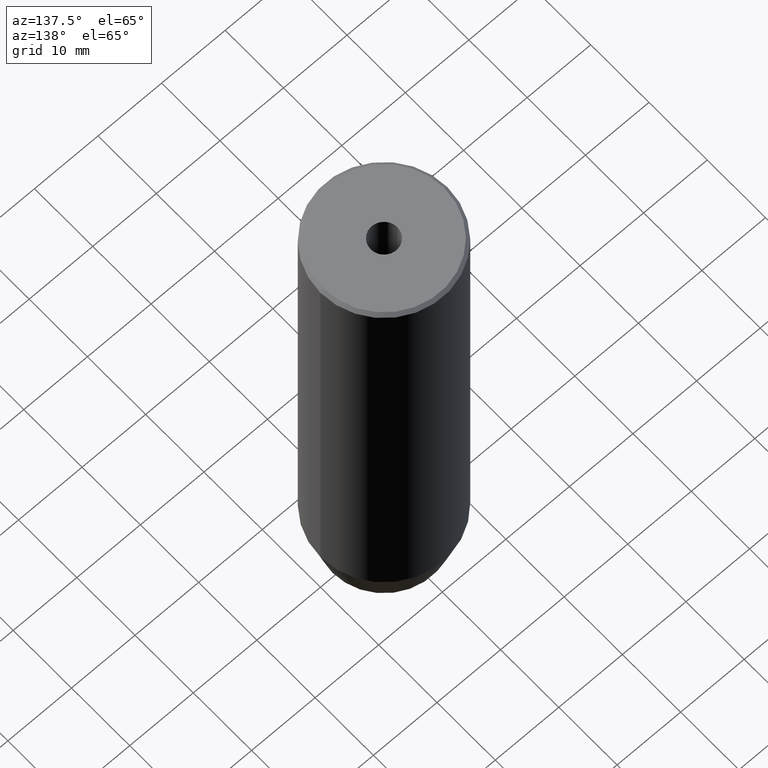
[diagram: clean part render]
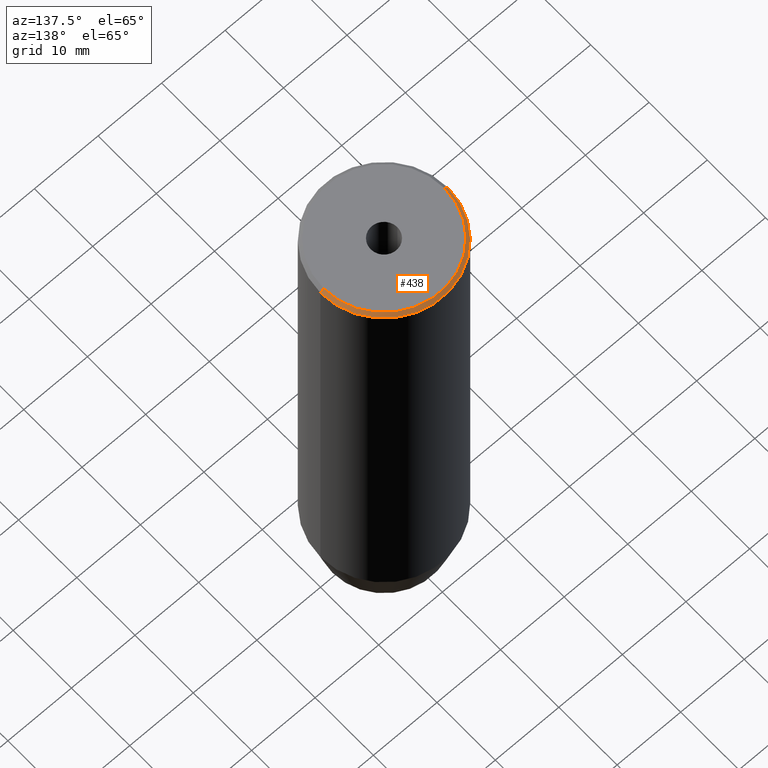
[diagram: same view with one face highlighted and labeled with its STEP entity id]
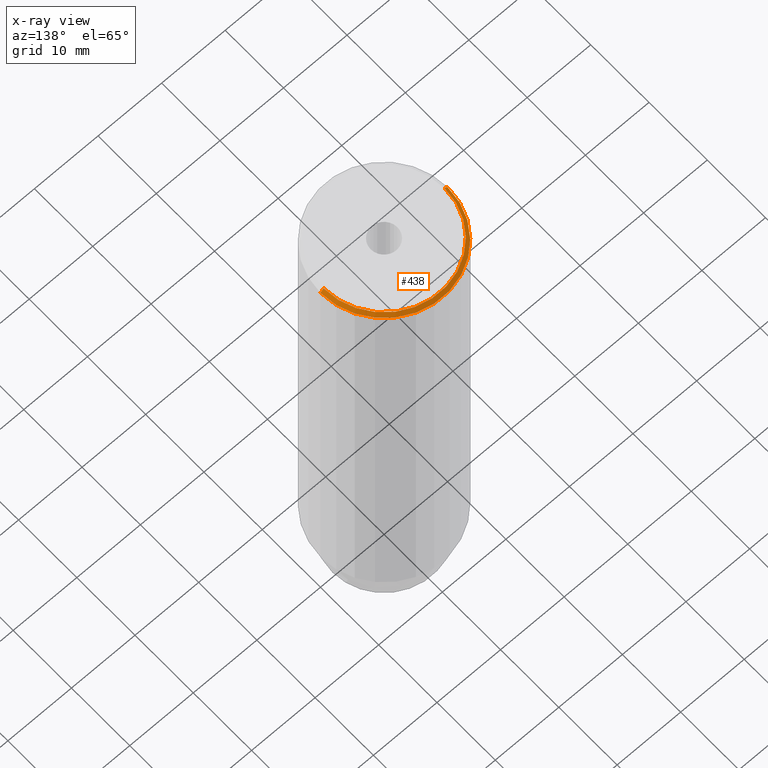
[diagram: x-ray of the same camera — body ghosted, the highlighted face saturated]
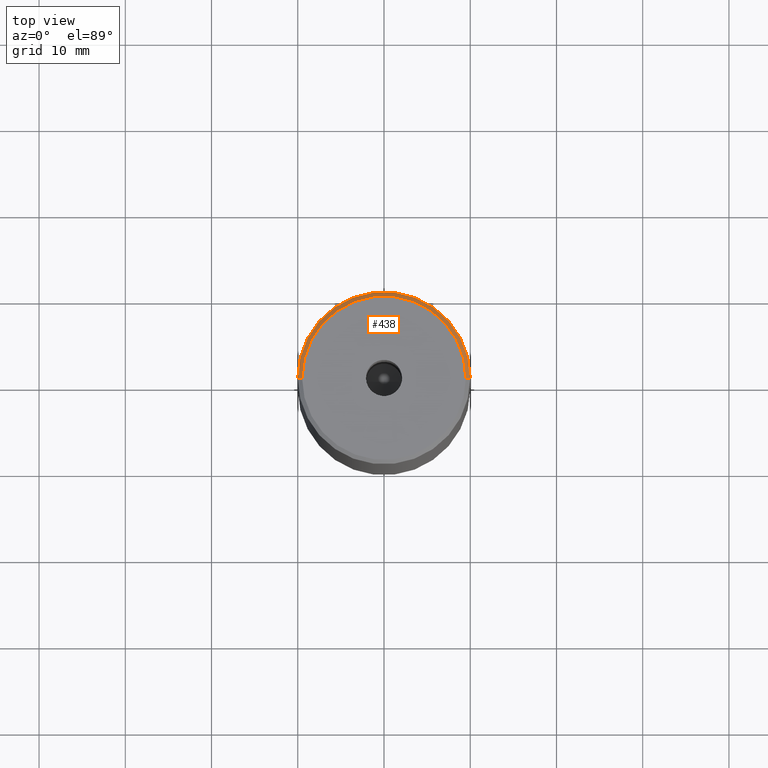
[diagram: same view with one face highlighted and labeled with its STEP entity id]
A machine part, auxiliary view. The second image highlights one B-rep face of the part: STEP entity #438.
The next image is the same camera in x-ray: the body ghosted, the highlighted face saturated — about 0% of this face is hidden behind the body in this view.
A second angle (top view) of the same face is appended — the face is thin or edge-on in the first view.
In plain terms, the highlighted conical surface has half-angle 45 deg.
Its self-contained STEP definition (entity closure, byte-faithful):
#2 = CARTESIAN_POINT ( 'NONE',  ( 0.000000000000000000, 0.000000000000000000, 0.000000000000000000 ) ) ;
#10 = CARTESIAN_POINT ( 'NONE',  ( 0.000000000000000000, 0.000000000000000000, -0.4999999999999987232 ) ) ;
#89 = EDGE_CURVE ( 'NONE', #409, #325, #537, .T. ) ;
#117 = VECTOR ( 'NONE', #165, 999.9999999999998863 ) ;
#133 = CARTESIAN_POINT ( 'NONE',  ( -9.500000000000015987, 0.000000000000000000, 0.000000000000000000 ) ) ;
#141 = ORIENTED_EDGE ( 'NONE', *, *, #185, .F. ) ;
#165 = DIRECTION ( 'NONE',  ( -0.7071067811865376918, 0.000000000000000000, -0.7071067811865574537 ) ) ;
#172 = DIRECTION ( 'NONE',  ( 0.000000000000000000, 0.000000000000000000, -1.000000000000000000 ) ) ;
#182 = FACE_OUTER_BOUND ( 'NONE', #270, .T. ) ;
#185 = EDGE_CURVE ( 'NONE', #429, #409, #554, .T. ) ;
#203 = CARTESIAN_POINT ( 'NONE',  ( 9.500000000000015987, 1.163414459189987457E-15, 0.000000000000000000 ) ) ;
#235 = DIRECTION ( 'NONE',  ( -0.000000000000000000, -0.000000000000000000, 1.000000000000000000 ) ) ;
#245 = DIRECTION ( 'NONE',  ( 0.7071067811865376918, 8.659560562354813296E-17, -0.7071067811865574537 ) ) ;
#255 = CARTESIAN_POINT ( 'NONE',  ( -9.500000000000015987, 0.000000000000000000, 0.000000000000000000 ) ) ;
#261 = DIRECTION ( 'NONE',  ( -1.000000000000000000, 0.000000000000000000, 0.000000000000000000 ) ) ;
#270 = EDGE_LOOP ( 'NONE', ( #141, #465, #499, #338 ) ) ;
#306 = AXIS2_PLACEMENT_3D ( 'NONE', #527, #235, #534 ) ;
#315 = AXIS2_PLACEMENT_3D ( 'NONE', #2, #172, #261 ) ;
#325 = VERTEX_POINT ( 'NONE', #487 ) ;
#338 = ORIENTED_EDGE ( 'NONE', *, *, #89, .F. ) ;
#340 = CARTESIAN_POINT ( 'NONE',  ( 10.00000000000000000, 0.000000000000000000, -0.4999999999999987232 ) ) ;
#349 = DIRECTION ( 'NONE',  ( 1.000000000000000000, 0.000000000000000000, 0.000000000000000000 ) ) ;
#384 = VERTEX_POINT ( 'NONE', #340 ) ;
#409 = VERTEX_POINT ( 'NONE', #255 ) ;
#429 = VERTEX_POINT ( 'NONE', #445 ) ;
#433 = LINE ( 'NONE', #203, #520 ) ;
#434 = CIRCLE ( 'NONE', #505, 10.00000000000000000 ) ;
#438 = ADVANCED_FACE ( 'NONE', ( #182 ), #486, .T. ) ;
#445 = CARTESIAN_POINT ( 'NONE',  ( 9.500000000000015987, 1.194030629168670258E-15, 0.000000000000000000 ) ) ;
#465 = ORIENTED_EDGE ( 'NONE', *, *, #521, .T. ) ;
#486 = CONICAL_SURFACE ( 'NONE', #315, 9.500000000000015987, 0.7853981633974344012 ) ;
#487 = CARTESIAN_POINT ( 'NONE',  ( -10.00000000000000000, 1.224646799147353256E-15, -0.4999999999999987232 ) ) ;
#495 = DIRECTION ( 'NONE',  ( 0.000000000000000000, 0.000000000000000000, -1.000000000000000000 ) ) ;
#499 = ORIENTED_EDGE ( 'NONE', *, *, #539, .F. ) ;
#505 = AXIS2_PLACEMENT_3D ( 'NONE', #10, #495, #349 ) ;
#520 = VECTOR ( 'NONE', #245, 999.9999999999998863 ) ;
#521 = EDGE_CURVE ( 'NONE', #429, #384, #433, .T. ) ;
#527 = CARTESIAN_POINT ( 'NONE',  ( 0.000000000000000000, 0.000000000000000000, 0.000000000000000000 ) ) ;
#534 = DIRECTION ( 'NONE',  ( 1.000000000000000000, 0.000000000000000000, 0.000000000000000000 ) ) ;
#537 = LINE ( 'NONE', #133, #117 ) ;
#539 = EDGE_CURVE ( 'NONE', #325, #384, #434, .T. ) ;
#554 = CIRCLE ( 'NONE', #306, 9.500000000000015987 ) ;